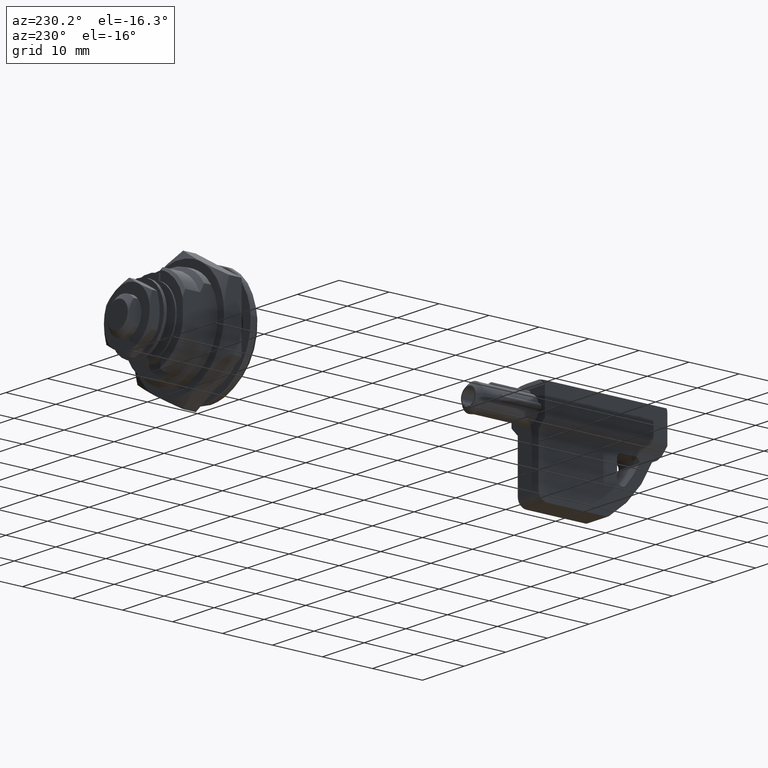
[diagram: clean part render]
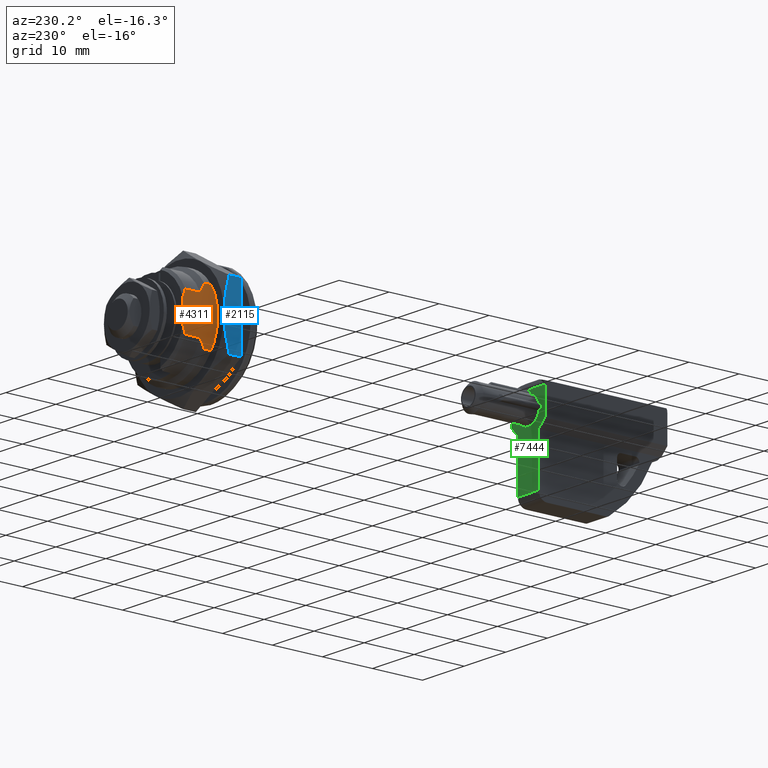
[diagram: same view with three faces highlighted in distinct colors, each labeled with its STEP entity id]
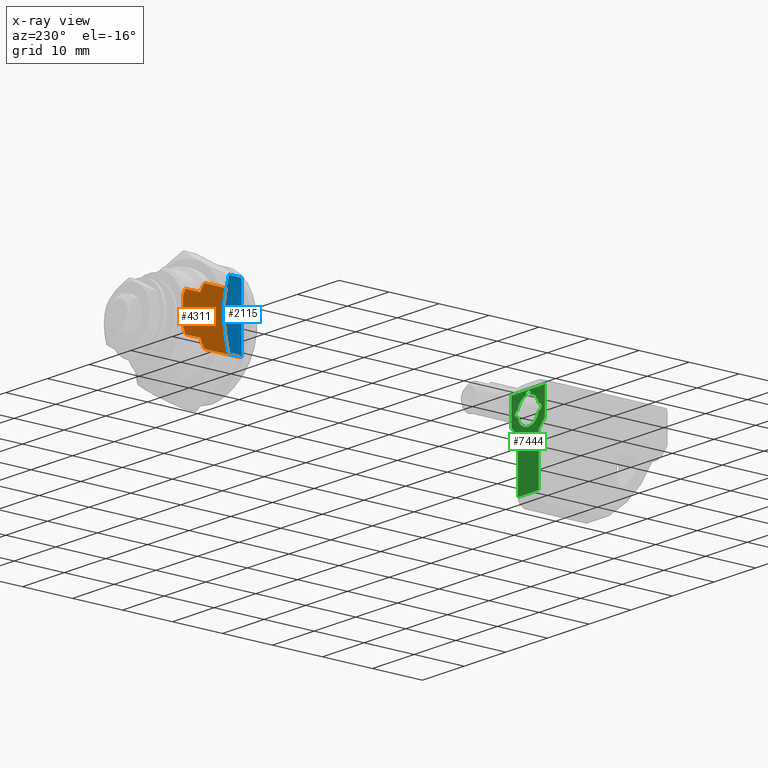
[diagram: x-ray of the same camera — body ghosted, the three highlighted faces saturated]
A machine part, auxiliary view with three faces highlighted in distinct colors.
The next image is the same camera in x-ray (body ghosted, the three faces saturated) — at least one of them is partly hidden behind the body in this view.
Their STEP definitions:

[orange] entity #4311 — the highlighted face is a freeform B-spline surface patch.
#3688=CARTESIAN_POINT('',(-7.900000000000000,6.900000000021841,5.276362383310140));
#3689=VERTEX_POINT('',#3688);
#3705=CARTESIAN_POINT('',(-7.900000000000000,4.837195E-016,5.276362383310140));
#3706=VERTEX_POINT('',#3705);
#3707=CARTESIAN_POINT('',(-7.900000000000000,6.900000000021841,5.276362383310140));
#3708=CARTESIAN_POINT('',(-7.900000000000000,4.837195E-016,5.276362383310140));
#3709=QUASI_UNIFORM_CURVE('',1,(#3707,#3708),.UNSPECIFIED.,.F.,.U.);
#3710=EDGE_CURVE('',#3689,#3706,#3709,.T.);
#3745=CARTESIAN_POINT('',(-7.900000000000000,10.699999999999999,3.644173431658020));
#3746=VERTEX_POINT('',#3745);
#3747=CARTESIAN_POINT('',(-7.900000000000000,11.199999999999999,2.197726097584000));
#3748=VERTEX_POINT('',#3747);
#3749=CARTESIAN_POINT('',(-7.900000000000000,10.699999999999999,3.644173431658020));
#3750=CARTESIAN_POINT('',(-7.900000000000000,10.897494407005480,3.172680684901958));
#3751=CARTESIAN_POINT('',(-7.900000000000000,11.067601785688590,2.691720940047350));
#3752=CARTESIAN_POINT('',(-7.900000000000000,11.199999999999999,2.197726097583900));
#3753=QUASI_UNIFORM_CURVE('',3,(#3749,#3750,#3751,#3752),.UNSPECIFIED.,.F.,.U.);
#3754=EDGE_CURVE('',#3746,#3748,#3753,.T.);
#3821=CARTESIAN_POINT('',(-7.900000000000000,10.699999999999999,-3.644173431657760));
#3822=VERTEX_POINT('',#3821);
#3836=CARTESIAN_POINT('',(-7.900000000000000,11.199999999999999,-2.197726097583745));
#3837=VERTEX_POINT('',#3836);
#3838=CARTESIAN_POINT('',(-7.900000000000000,11.199999999999999,-2.197726097583745));
#3839=CARTESIAN_POINT('',(-7.900000000000000,11.067601785688590,-2.691720940047094));
#3840=CARTESIAN_POINT('',(-7.900000000000000,10.897494407005480,-3.172680684901704));
#3841=CARTESIAN_POINT('',(-7.900000000000000,10.699999999999999,-3.644173431657765));
#3842=QUASI_UNIFORM_CURVE('',3,(#3838,#3839,#3840,#3841),.UNSPECIFIED.,.F.,.U.);
#3843=EDGE_CURVE('',#3837,#3822,#3842,.T.);
#3874=CARTESIAN_POINT('',(-7.900000000000000,11.199999999999999,-2.197726097583745));
#3875=CARTESIAN_POINT('',(-7.900000000000000,11.199999999999999,2.197726097584000));
#3876=QUASI_UNIFORM_CURVE('',1,(#3874,#3875),.UNSPECIFIED.,.F.,.U.);
#3877=EDGE_CURVE('',#3837,#3748,#3876,.T.);
#4024=CARTESIAN_POINT('',(-7.900000000000000,7.700000000000001,3.644173431658020));
#4025=VERTEX_POINT('',#4024);
#4026=CARTESIAN_POINT('',(-7.900000000000000,6.900000000021841,5.276362383310140));
#4027=CARTESIAN_POINT('',(-7.900000000018071,7.047288978963378,5.011171102187841));
#4028=CARTESIAN_POINT('',(-7.900000000000002,7.188570036425821,4.743035102408429));
#4029=CARTESIAN_POINT('',(-7.899999999999999,7.456298449008924,4.199492521960599));
#4030=CARTESIAN_POINT('',(-7.900000000000000,7.582751695075470,3.924088828693709));
#4031=CARTESIAN_POINT('',(-7.900000000000000,7.700000000000001,3.644173431698095));
#4032=B_SPLINE_CURVE_WITH_KNOTS('',3,(#4026,#4027,#4028,#4029,#4030,#4031),.UNSPECIFIED.,.F.,.U.,(4,2,4),(0.0,0.500000000000000,1.0),.UNSPECIFIED.);
#4033=EDGE_CURVE('',#3689,#4025,#4032,.T.);
#4099=CARTESIAN_POINT('',(-7.900000000000000,6.900000000000000,-5.276362383309141));
#4100=VERTEX_POINT('',#4099);
#4116=CARTESIAN_POINT('',(-7.900000000000000,7.700000000000001,-3.644173431657760));
#4117=VERTEX_POINT('',#4116);
#4118=CARTESIAN_POINT('',(-7.900000000000000,7.700000000000001,-3.644173431657760));
#4119=CARTESIAN_POINT('',(-7.900000000000000,7.582751695074945,-3.924088828654686));
#4120=CARTESIAN_POINT('',(-7.900000000000000,7.456298448992350,-4.199492521955431));
#4121=CARTESIAN_POINT('',(-7.900000000000000,7.188570036406624,-4.743035102405264));
#4122=CARTESIAN_POINT('',(-7.900000000000000,7.047288978964740,-5.011171102173634));
#4123=CARTESIAN_POINT('',(-7.900000000000000,6.900000000000000,-5.276362383309141));
#4124=B_SPLINE_CURVE_WITH_KNOTS('',3,(#4118,#4119,#4120,#4121,#4122,#4123),.UNSPECIFIED.,.F.,.U.,(4,2,4),(0.0,0.500000000000000,1.0),.UNSPECIFIED.);
#4125=EDGE_CURVE('',#4117,#4100,#4124,.T.);
#4167=CARTESIAN_POINT('',(-7.900000000000000,10.699999999999999,3.644173431658020));
#4168=CARTESIAN_POINT('',(-7.900000000000000,7.700000000000001,3.644173431658020));
#4169=QUASI_UNIFORM_CURVE('',1,(#4167,#4168),.UNSPECIFIED.,.F.,.U.);
#4170=EDGE_CURVE('',#3746,#4025,#4169,.T.);
#4214=CARTESIAN_POINT('',(-7.900000000000000,7.700000000000001,-3.644173431657760));
#4215=CARTESIAN_POINT('',(-7.900000000000000,10.699999999999999,-3.644173431657760));
#4216=QUASI_UNIFORM_CURVE('',1,(#4214,#4215),.UNSPECIFIED.,.F.,.U.);
#4217=EDGE_CURVE('',#4117,#3822,#4216,.T.);
#4257=CARTESIAN_POINT('',(-7.900000000000000,4.837195E-016,-5.276362383309141));
#4258=VERTEX_POINT('',#4257);
#4259=CARTESIAN_POINT('',(-7.900000000000000,4.837195E-016,-5.276362383309141));
#4260=CARTESIAN_POINT('',(-7.900000000000000,4.837195E-016,5.276362383310140));
#4261=QUASI_UNIFORM_CURVE('',1,(#4259,#4260),.UNSPECIFIED.,.F.,.U.);
#4262=EDGE_CURVE('',#4258,#3706,#4261,.T.);
#4290=CARTESIAN_POINT('',(-7.900000000000000,-0.559439978292226,5.803470964949544));
#4291=CARTESIAN_POINT('',(-7.900000000000000,-0.559439978292226,-5.803471247994681));
#4292=CARTESIAN_POINT('',(-7.900000000000000,11.759440278699641,5.803470964949544));
#4293=CARTESIAN_POINT('',(-7.900000000000000,11.759440278699641,-5.803471247994681));
#4294=B_SPLINE_SURFACE_WITH_KNOTS('',1,1,((#4290,#4292),(#4291,#4293)),.UNSPECIFIED.,.F.,.F.,.U.,(2,2),(2,2),(0.0,11.606942212944229),(0.0,12.318880256991861),.UNSPECIFIED.);
#4295=ORIENTED_EDGE('',*,*,#3877,.F.);
#4296=ORIENTED_EDGE('',*,*,#3843,.T.);
#4297=ORIENTED_EDGE('',*,*,#4217,.F.);
#4298=ORIENTED_EDGE('',*,*,#4125,.T.);
#4299=CARTESIAN_POINT('',(-7.900000000000000,6.900000000000000,-5.276362383309141));
#4300=CARTESIAN_POINT('',(-7.900000000000000,4.837195E-016,-5.276362383309141));
#4301=QUASI_UNIFORM_CURVE('',1,(#4299,#4300),.UNSPECIFIED.,.F.,.U.);
#4302=EDGE_CURVE('',#4100,#4258,#4301,.T.);
#4303=ORIENTED_EDGE('',*,*,#4302,.T.);
#4304=ORIENTED_EDGE('',*,*,#4262,.T.);
#4305=ORIENTED_EDGE('',*,*,#3710,.F.);
#4306=ORIENTED_EDGE('',*,*,#4033,.T.);
#4307=ORIENTED_EDGE('',*,*,#4170,.F.);
#4308=ORIENTED_EDGE('',*,*,#3754,.T.);
#4309=EDGE_LOOP('',(#4295,#4296,#4297,#4298,#4303,#4304,#4305,#4306,#4307,#4308));
#4310=FACE_OUTER_BOUND('',#4309,.T.);
#4311=ADVANCED_FACE('',(#4310),#4294,.F.);

[blue] entity #2115 — the highlighted face is a freeform B-spline surface patch.
#1656=CARTESIAN_POINT('',(-11.000000000000201,5.500000000000000,-1.421085E-014));
#1657=VERTEX_POINT('',#1656);
#1768=CARTESIAN_POINT('',(-11.0,4.517519582818508,6.350853116742620));
#1769=VERTEX_POINT('',#1768);
#1770=CARTESIAN_POINT('',(-11.0,4.517519582818437,6.350853116742604));
#1771=CARTESIAN_POINT('',(-11.0,4.813871360294527,5.324260464609766));
#1772=CARTESIAN_POINT('',(-11.0,5.060687656531030,4.284205776269046));
#1773=CARTESIAN_POINT('',(-11.0,5.275908638114316,2.958781858218811));
#1774=CARTESIAN_POINT('',(-11.0,5.333449356244685,2.559245373339782));
#1775=CARTESIAN_POINT('',(-11.0,5.379547030997117,2.156599063736592));
#1776=CARTESIAN_POINT('',(-11.0,5.407640668046575,1.887451233495185));
#1777=CARTESIAN_POINT('',(-11.0,5.420380349835128,1.752365499602068));
#1778=CARTESIAN_POINT('',(-11.0,5.477088102997506,1.077148416634842));
#1779=CARTESIAN_POINT('',(-11.0,5.499946011423390,0.538671275182361));
#1780=CARTESIAN_POINT('',(-11.0,5.499999967989155,0.001275296503354));
#1781=CARTESIAN_POINT('',(-11.0,5.499999999841741,0.000637647247153));
#1782=CARTESIAN_POINT('',(-11.0,5.499999999526189,4.155733E-010));
#1783=B_SPLINE_CURVE_WITH_KNOTS('',3,(#1770,#1771,#1772,#1773,#1774,#1775,#1776,#1777,#1778,#1779,#1780,#1781,#1782),.UNSPECIFIED.,.F.,.U.,(4,2,1,2,2,2,4),(0.499851504008209,0.749851504008208,0.812351504008208,0.843601504008208,0.874851504008208,0.999851504008208,1.0),.UNSPECIFIED.);
#1784=EDGE_CURVE('',#1769,#1657,#1783,.T.);
#1816=CARTESIAN_POINT('',(-10.999999999989940,4.517519627756101,-6.350852961091380));
#1817=VERTEX_POINT('',#1816);
#1818=CARTESIAN_POINT('',(-11.000000000000201,5.500000000000000,-1.421085E-014));
#1819=CARTESIAN_POINT('',(-11.0,5.499999734205588,-0.536116597932297));
#1820=CARTESIAN_POINT('',(-11.0,5.477259800926092,-1.070519231547561));
#1821=CARTESIAN_POINT('',(-11.0,5.388477854223432,-2.136698324092624));
#1822=CARTESIAN_POINT('',(-11.0,5.322416487689843,-2.668473324314180));
#1823=CARTESIAN_POINT('',(-11.0,5.194175945466263,-3.463938805912636));
#1824=CARTESIAN_POINT('',(-11.0,5.146584973193704,-3.728728848657463));
#1825=CARTESIAN_POINT('',(-11.0,5.042387228402909,-4.257629383323240));
#1826=CARTESIAN_POINT('',(-11.0,4.985755986517958,-4.521850372750786));
#1827=CARTESIAN_POINT('',(-11.0,4.803562689097966,-5.312884909771390));
#1828=CARTESIAN_POINT('',(-11.0,4.666652325817395,-5.834242140850442));
#1829=CARTESIAN_POINT('',(-11.0,4.517519627751625,-6.350852961089640));
#1830=B_SPLINE_CURVE_WITH_KNOTS('',3,(#1818,#1819,#1820,#1821,#1822,#1823,#1824,#1825,#1826,#1827,#1828,#1829),.UNSPECIFIED.,.F.,.U.,(4,2,2,2,2,4),(0.0,0.124851503977544,0.249851503977544,0.312351503977544,0.374851503977544,0.499851503977545),.UNSPECIFIED.);
#1831=EDGE_CURVE('',#1657,#1817,#1830,.T.);
#2044=CARTESIAN_POINT('',(-11.0,2.0,6.350852961075090));
#2045=VERTEX_POINT('',#2044);
#2053=CARTESIAN_POINT('',(-10.999999999989940,2.0,-6.350852961091380));
#2054=VERTEX_POINT('',#2053);
#2055=CARTESIAN_POINT('',(-10.999999999989940,2.0,-6.350852961091380));
#2056=CARTESIAN_POINT('',(-11.0,2.0,6.350852961075090));
#2057=QUASI_UNIFORM_CURVE('',1,(#2055,#2056),.UNSPECIFIED.,.F.,.U.);
#2058=EDGE_CURVE('',#2054,#2045,#2057,.T.);
#2095=CARTESIAN_POINT('',(-11.0,1.825175006783677,6.985303310712057));
#2096=CARTESIAN_POINT('',(-11.0,1.825175006783677,-6.985303495747123));
#2097=CARTESIAN_POINT('',(-11.0,5.674825087093637,6.985303310712057));
#2098=CARTESIAN_POINT('',(-11.0,5.674825087093637,-6.985303495747123));
#2099=B_SPLINE_SURFACE_WITH_KNOTS('',1,1,((#2095,#2097),(#2096,#2098)),.UNSPECIFIED.,.F.,.F.,.U.,(2,2),(2,2),(0.0,13.970606806459180),(0.0,3.849650080309960),.UNSPECIFIED.);
#2100=CARTESIAN_POINT('',(-11.0,4.517519582818508,6.350853116742620));
#2101=CARTESIAN_POINT('',(-11.0,2.0,6.350852961075090));
#2102=QUASI_UNIFORM_CURVE('',1,(#2100,#2101),.UNSPECIFIED.,.F.,.U.);
#2103=EDGE_CURVE('',#1769,#2045,#2102,.T.);
#2104=ORIENTED_EDGE('',*,*,#2103,.F.);
#2105=ORIENTED_EDGE('',*,*,#1784,.T.);
#2106=ORIENTED_EDGE('',*,*,#1831,.T.);
#2107=CARTESIAN_POINT('',(-10.999999999989940,4.517519627756101,-6.350852961091380));
#2108=CARTESIAN_POINT('',(-10.999999999989940,2.0,-6.350852961091380));
#2109=QUASI_UNIFORM_CURVE('',1,(#2107,#2108),.UNSPECIFIED.,.F.,.U.);
#2110=EDGE_CURVE('',#1817,#2054,#2109,.T.);
#2111=ORIENTED_EDGE('',*,*,#2110,.T.);
#2112=ORIENTED_EDGE('',*,*,#2058,.T.);
#2113=EDGE_LOOP('',(#2104,#2105,#2106,#2111,#2112));
#2114=FACE_OUTER_BOUND('',#2113,.T.);
#2115=ADVANCED_FACE('',(#2114),#2099,.F.);

[green] entity #7444 — the highlighted face is a freeform B-spline surface patch.
#5701=CARTESIAN_POINT('',(1.646350844827652,-64.500000000000000,-2.012344129550144));
#5702=VERTEX_POINT('',#5701);
#5708=CARTESIAN_POINT('',(-2.541161151914699,-64.500000000000000,-0.550000000000000));
#5709=VERTEX_POINT('',#5708);
#5710=CARTESIAN_POINT('',(1.646350844827693,-64.500000000000014,-2.012344129550194));
#5711=CARTESIAN_POINT('',(0.928055686289270,-64.500000000000000,-2.600000000000000));
#5712=CARTESIAN_POINT('',(-3.949355E-015,-64.500000000000000,-2.600000000000000));
#5713=CARTESIAN_POINT('',(-2.097466347612079,-64.500000000000000,-2.600000000000000));
#5714=CARTESIAN_POINT('',(-2.541161151914620,-64.500000000000000,-0.549999999999983));
#5722=(BOUNDED_CURVE()B_SPLINE_CURVE(2,(#5710,#5711,#5712,#5713,#5714),.UNSPECIFIED.,.F.,.U.)B_SPLINE_CURVE_WITH_KNOTS((3,2,3),(0.247566997875736,0.500000000000000,1.0),.UNSPECIFIED.)CURVE()GEOMETRIC_REPRESENTATION_ITEM()RATIONAL_B_SPLINE_CURVE((0.889166389513129,0.888077155438845,1.0,0.778311782494154,1.0))REPRESENTATION_ITEM(''));
#5723=EDGE_CURVE('',#5702,#5709,#5722,.T.);
#5747=CARTESIAN_POINT('',(-2.541161151914699,-64.500000000000000,0.550000000000000));
#5748=VERTEX_POINT('',#5747);
#5754=CARTESIAN_POINT('',(-1.646350395216080,-64.500000000000000,2.012344497389020));
#5755=VERTEX_POINT('',#5754);
#5756=CARTESIAN_POINT('',(-2.541161151914620,-64.500000000000000,0.549999999999982));
#5757=CARTESIAN_POINT('',(-2.349092553533071,-64.500000000000000,1.437413201290709));
#5758=CARTESIAN_POINT('',(-1.646350395216080,-64.500000000000028,2.012344497389021));
#5766=(BOUNDED_CURVE()B_SPLINE_CURVE(2,(#5756,#5757,#5758),.UNSPECIFIED.,.F.,.U.)B_SPLINE_CURVE_WITH_KNOTS((3,3),(0.0,0.584794345000766),.UNSPECIFIED.)CURVE()GEOMETRIC_REPRESENTATION_ITEM()RATIONAL_B_SPLINE_CURVE((1.0,0.906833491683561,0.922633477780962))REPRESENTATION_ITEM(''));
#5767=EDGE_CURVE('',#5748,#5755,#5766,.T.);
#5797=CARTESIAN_POINT('',(-0.550000000000004,-64.500000000000000,2.541161151914695));
#5798=VERTEX_POINT('',#5797);
#5799=CARTESIAN_POINT('',(-1.646350395216080,-64.500000000000028,2.012344497389021));
#5800=CARTESIAN_POINT('',(-1.161836955475255,-64.499999999999986,2.408737308878196));
#5801=CARTESIAN_POINT('',(-0.549999999999987,-64.500000000000000,2.541161151914616));
#5809=(BOUNDED_CURVE()B_SPLINE_CURVE(2,(#5799,#5800,#5801),.UNSPECIFIED.,.F.,.U.)B_SPLINE_CURVE_WITH_KNOTS((3,3),(0.584794345000766,1.0),.UNSPECIFIED.)CURVE()GEOMETRIC_REPRESENTATION_ITEM()RATIONAL_B_SPLINE_CURVE((0.922633477780962,0.933851513031529,1.0))REPRESENTATION_ITEM(''));
#5810=EDGE_CURVE('',#5755,#5798,#5809,.T.);
#5834=CARTESIAN_POINT('',(0.549999999999996,-64.500000000000000,2.541161151914695));
#5835=VERTEX_POINT('',#5834);
#5841=CARTESIAN_POINT('',(2.541161151914691,-64.500000000000000,0.550000000000000));
#5842=VERTEX_POINT('',#5841);
#5843=CARTESIAN_POINT('',(0.549999999999979,-64.500000000000000,2.541161151914616));
#5844=CARTESIAN_POINT('',(2.186880485287216,-64.500000000000000,2.186880485287220));
#5845=CARTESIAN_POINT('',(2.541161151914612,-64.500000000000000,0.549999999999983));
#5853=(BOUNDED_CURVE()B_SPLINE_CURVE(2,(#5843,#5844,#5845),.UNSPECIFIED.,.F.,.U.)CURVE()GEOMETRIC_REPRESENTATION_ITEM()QUASI_UNIFORM_CURVE()RATIONAL_B_SPLINE_CURVE((1.0,0.840685004715090,1.0))REPRESENTATION_ITEM(''));
#5854=EDGE_CURVE('',#5835,#5842,#5853,.T.);
#5878=CARTESIAN_POINT('',(2.541161151914691,-64.500000000000000,-0.550000000000000));
#5879=VERTEX_POINT('',#5878);
#5885=CARTESIAN_POINT('',(2.541161151914612,-64.500000000000000,-0.549999999999983));
#5886=CARTESIAN_POINT('',(2.349092622468419,-64.500000000000000,-1.437412882789168));
#5887=CARTESIAN_POINT('',(1.646350844827693,-64.500000000000014,-2.012344129550194));
#5895=(BOUNDED_CURVE()B_SPLINE_CURVE(2,(#5885,#5886,#5887),.UNSPECIFIED.,.F.,.U.)B_SPLINE_CURVE_WITH_KNOTS((3,3),(0.0,0.247566997875736),.UNSPECIFIED.)CURVE()GEOMETRIC_REPRESENTATION_ITEM()RATIONAL_B_SPLINE_CURVE((1.0,0.890234627055309,0.889166389513129))REPRESENTATION_ITEM(''));
#5896=EDGE_CURVE('',#5879,#5702,#5895,.T.);
#6487=CARTESIAN_POINT('',(3.999999999999996,-64.500000000000000,3.300000000000000));
#6488=VERTEX_POINT('',#6487);
#6504=CARTESIAN_POINT('',(-4.000000000000004,-64.500000000000000,3.300000000000000));
#6505=VERTEX_POINT('',#6504);
#6506=CARTESIAN_POINT('',(-4.000000000000004,-64.500000000000000,3.300000000000000));
#6507=CARTESIAN_POINT('',(3.999999999999996,-64.500000000000000,3.300000000000000));
#6508=QUASI_UNIFORM_CURVE('',1,(#6506,#6507),.UNSPECIFIED.,.F.,.U.);
#6509=EDGE_CURVE('',#6505,#6488,#6508,.T.);
#6593=CARTESIAN_POINT('',(2.499999999999996,-64.500000000000000,-3.500000000000000));
#6594=VERTEX_POINT('',#6593);
#6595=CARTESIAN_POINT('',(3.999999999999996,-64.500000000000000,-1.999999999999970));
#6596=VERTEX_POINT('',#6595);
#6597=CARTESIAN_POINT('',(2.499999999999996,-64.500000000000000,-3.500000000000000));
#6598=CARTESIAN_POINT('',(3.999999999999996,-64.500000000000000,-1.999999999999970));
#6599=QUASI_UNIFORM_CURVE('',1,(#6597,#6598),.UNSPECIFIED.,.F.,.U.);
#6600=EDGE_CURVE('',#6594,#6596,#6599,.T.);
#6622=CARTESIAN_POINT('',(-2.500000000000004,-64.500000000000000,-3.500000000000000));
#6623=VERTEX_POINT('',#6622);
#6624=CARTESIAN_POINT('',(-4.000000000000004,-64.500000000000000,-1.999999999999970));
#6625=VERTEX_POINT('',#6624);
#6626=CARTESIAN_POINT('',(-2.500000000000004,-64.500000000000000,-3.500000000000000));
#6627=CARTESIAN_POINT('',(-4.000000000000004,-64.500000000000000,-1.999999999999970));
#6628=QUASI_UNIFORM_CURVE('',1,(#6626,#6627),.UNSPECIFIED.,.F.,.U.);
#6629=EDGE_CURVE('',#6623,#6625,#6628,.T.);
#6907=CARTESIAN_POINT('',(2.600000000000076,-64.500000000000000,-0.550000000000000));
#6908=VERTEX_POINT('',#6907);
#6915=CARTESIAN_POINT('',(2.600000000000076,-64.500000000000000,0.550000000000000));
#6916=VERTEX_POINT('',#6915);
#6922=CARTESIAN_POINT('',(2.600000000000076,-64.500000000000000,0.550000000000000));
#6923=CARTESIAN_POINT('',(2.699043458005758,-64.500000000000099,0.550278144214085));
#6924=CARTESIAN_POINT('',(2.869724594393176,-64.499999999999901,0.502539204968122));
#6925=CARTESIAN_POINT('',(3.060079530221625,-64.500000000000071,0.330017106875479));
#6926=CARTESIAN_POINT('',(3.164924017854091,-64.500000000000213,0.093999252253955));
#6927=CARTESIAN_POINT('',(3.144315674721964,-64.499999999999417,-0.185221545019725));
#6928=CARTESIAN_POINT('',(3.005094578362868,-64.500000000000668,-0.393346918917029));
#6929=CARTESIAN_POINT('',(2.815844306010185,-64.499999999999019,-0.519604570679338));
#6930=CARTESIAN_POINT('',(2.680996682507910,-64.500000000000611,-0.550130913076087));
#6931=CARTESIAN_POINT('',(2.600000000000076,-64.500000000000000,-0.550000000000000));
#6932=B_SPLINE_CURVE_WITH_KNOTS('',3,(#6922,#6923,#6924,#6925,#6926,#6927,#6928,#6929,#6930,#6931),.UNSPECIFIED.,.F.,.U.,(4,1,1,1,1,1,1,4),(0.000002415412234,0.296978794675046,0.513047049012781,0.756045069337535,1.053016832078155,1.323046289808557,1.485105935130223,1.728049279698849),.UNSPECIFIED.);
#6933=EDGE_CURVE('',#6916,#6908,#6932,.T.);
#6945=CARTESIAN_POINT('',(2.541161151914691,-64.500000000000000,-0.550000000000000));
#6946=CARTESIAN_POINT('',(2.600000000000076,-64.500000000000000,-0.550000000000000));
#6947=QUASI_UNIFORM_CURVE('',1,(#6945,#6946),.UNSPECIFIED.,.F.,.U.);
#6948=EDGE_CURVE('',#5879,#6908,#6947,.T.);
#6961=CARTESIAN_POINT('',(2.600000000000076,-64.500000000000000,0.550000000000000));
#6962=CARTESIAN_POINT('',(2.541161151914691,-64.500000000000000,0.550000000000000));
#6963=QUASI_UNIFORM_CURVE('',1,(#6961,#6962),.UNSPECIFIED.,.F.,.U.);
#6964=EDGE_CURVE('',#6916,#5842,#6963,.T.);
#6988=CARTESIAN_POINT('',(-2.600000000000084,-64.500000000000000,0.550000000000000));
#6989=VERTEX_POINT('',#6988);
#6996=CARTESIAN_POINT('',(-2.600000000000084,-64.500000000000000,-0.550000000000000));
#6997=VERTEX_POINT('',#6996);
#7003=CARTESIAN_POINT('',(-2.600000000000084,-64.500000000000000,-0.550000000000000));
#7004=CARTESIAN_POINT('',(-2.681005865344769,-64.500000000000014,-0.550095818210914));
#7005=CARTESIAN_POINT('',(-2.842918828038462,-64.500000000000000,-0.513602949082180));
#7006=CARTESIAN_POINT('',(-3.031963885362632,-64.499999999999901,-0.366122318555205));
#7007=CARTESIAN_POINT('',(-3.144391753850169,-64.500000000000085,-0.155712007553697));
#7008=CARTESIAN_POINT('',(-3.159964575720477,-64.499999999999844,0.055734958471736));
#7009=CARTESIAN_POINT('',(-3.099204369818253,-64.500000000000313,0.255979009516683));
#7010=CARTESIAN_POINT('',(-2.979009429356642,-64.499999999999488,0.418144863365411));
#7011=CARTESIAN_POINT('',(-2.797966511406555,-64.500000000000554,0.526597745720660));
#7012=CARTESIAN_POINT('',(-2.662991192965301,-64.499999999999744,0.550030817253861));
#7013=CARTESIAN_POINT('',(-2.600000000000084,-64.500000000000000,0.550000000000000));
#7014=B_SPLINE_CURVE_WITH_KNOTS('',3,(#7003,#7004,#7005,#7006,#7007,#7008,#7009,#7010,#7011,#7012,#7013),.UNSPECIFIED.,.F.,.U.,(4,1,1,1,1,1,1,1,4),(0.000002415412150,0.243005613443003,0.486025141151097,0.702107822982103,0.944953570453991,1.106969327610988,1.323046289808541,1.539058429873225,1.728049279698848),.UNSPECIFIED.);
#7015=EDGE_CURVE('',#6997,#6989,#7014,.T.);
#7027=CARTESIAN_POINT('',(-2.541161151914699,-64.500000000000000,0.550000000000000));
#7028=CARTESIAN_POINT('',(-2.600000000000084,-64.500000000000000,0.550000000000000));
#7029=QUASI_UNIFORM_CURVE('',1,(#7027,#7028),.UNSPECIFIED.,.F.,.U.);
#7030=EDGE_CURVE('',#5748,#6989,#7029,.T.);
#7043=CARTESIAN_POINT('',(-2.600000000000084,-64.500000000000000,-0.550000000000000));
#7044=CARTESIAN_POINT('',(-2.541161151914699,-64.500000000000000,-0.550000000000000));
#7045=QUASI_UNIFORM_CURVE('',1,(#7043,#7044),.UNSPECIFIED.,.F.,.U.);
#7046=EDGE_CURVE('',#6997,#5709,#7045,.T.);
#7059=CARTESIAN_POINT('',(-0.550000000000004,-64.500000000000000,2.600000000000080));
#7060=VERTEX_POINT('',#7059);
#7061=CARTESIAN_POINT('',(-0.550000000000004,-64.500000000000000,2.600000000000080));
#7062=CARTESIAN_POINT('',(-0.550000000000004,-64.500000000000000,2.541161151914695));
#7063=QUASI_UNIFORM_CURVE('',1,(#7061,#7062),.UNSPECIFIED.,.F.,.U.);
#7064=EDGE_CURVE('',#7060,#5798,#7063,.T.);
#7092=CARTESIAN_POINT('',(0.549999999999996,-64.500000000000000,2.600000000000080));
#7093=VERTEX_POINT('',#7092);
#7101=CARTESIAN_POINT('',(-0.550000000000004,-64.500000000000000,2.600000000000080));
#7102=CARTESIAN_POINT('',(-0.550095818210918,-64.500000000000014,2.681005865344765));
#7103=CARTESIAN_POINT('',(-0.513602949082184,-64.500000000000000,2.842918828038458));
#7104=CARTESIAN_POINT('',(-0.366122318555209,-64.499999999999901,3.031963885362628));
#7105=CARTESIAN_POINT('',(-0.155712007553701,-64.500000000000085,3.144391753850165));
#7106=CARTESIAN_POINT('',(0.055734958471732,-64.499999999999844,3.159964575720473));
#7107=CARTESIAN_POINT('',(0.255979009516679,-64.500000000000313,3.099204369818249));
#7108=CARTESIAN_POINT('',(0.418144863365407,-64.499999999999488,2.979009429356638));
#7109=CARTESIAN_POINT('',(0.526597745720656,-64.500000000000554,2.797966511406551));
#7110=CARTESIAN_POINT('',(0.550030817253857,-64.499999999999744,2.662991192965297));
#7111=CARTESIAN_POINT('',(0.549999999999996,-64.500000000000000,2.600000000000080));
#7112=B_SPLINE_CURVE_WITH_KNOTS('',3,(#7101,#7102,#7103,#7104,#7105,#7106,#7107,#7108,#7109,#7110,#7111),.UNSPECIFIED.,.F.,.U.,(4,1,1,1,1,1,1,1,4),(0.000002415412150,0.243005613443003,0.486025141151097,0.702107822982103,0.944953570453991,1.106969327610988,1.323046289808541,1.539058429873225,1.728049279698848),.UNSPECIFIED.);
#7113=EDGE_CURVE('',#7060,#7093,#7112,.T.);
#7125=CARTESIAN_POINT('',(0.549999999999996,-64.500000000000000,2.541161151914695));
#7126=CARTESIAN_POINT('',(0.549999999999996,-64.500000000000000,2.600000000000080));
#7127=QUASI_UNIFORM_CURVE('',1,(#7125,#7126),.UNSPECIFIED.,.F.,.U.);
#7128=EDGE_CURVE('',#5835,#7093,#7127,.T.);
#7139=CARTESIAN_POINT('',(3.999999999999996,-64.500000000000000,3.300000000000000));
#7140=CARTESIAN_POINT('',(3.999999999999996,-64.500000000000000,-1.999999999999970));
#7141=QUASI_UNIFORM_CURVE('',1,(#7139,#7140),.UNSPECIFIED.,.F.,.U.);
#7142=EDGE_CURVE('',#6488,#6596,#7141,.T.);
#7195=CARTESIAN_POINT('',(2.499999999999941,-64.500000000000000,-13.300000000000001));
#7196=VERTEX_POINT('',#7195);
#7210=CARTESIAN_POINT('',(2.499999999999996,-64.500000000000000,-3.500000000000000));
#7211=CARTESIAN_POINT('',(2.499999999999941,-64.500000000000000,-13.300000000000001));
#7212=QUASI_UNIFORM_CURVE('',1,(#7210,#7211),.UNSPECIFIED.,.F.,.U.);
#7213=EDGE_CURVE('',#6594,#7196,#7212,.T.);
#7236=CARTESIAN_POINT('',(-2.499999999999949,-64.500000000000000,-13.300000000000001));
#7237=VERTEX_POINT('',#7236);
#7238=CARTESIAN_POINT('',(-2.500000000000004,-64.500000000000000,-3.500000000000000));
#7239=CARTESIAN_POINT('',(-2.499999999999949,-64.500000000000000,-13.300000000000001));
#7240=QUASI_UNIFORM_CURVE('',1,(#7238,#7239),.UNSPECIFIED.,.F.,.U.);
#7241=EDGE_CURVE('',#6623,#7237,#7240,.T.);
#7387=CARTESIAN_POINT('',(-2.499999999999949,-64.500000000000000,-13.300000000000001));
#7388=CARTESIAN_POINT('',(2.499999999999941,-64.500000000000000,-13.300000000000001));
#7389=QUASI_UNIFORM_CURVE('',1,(#7387,#7388),.UNSPECIFIED.,.F.,.U.);
#7390=EDGE_CURVE('',#7237,#7196,#7389,.T.);
#7402=CARTESIAN_POINT('',(-4.000000000000004,-64.500000000000000,3.300000000000000));
#7403=CARTESIAN_POINT('',(-4.000000000000004,-64.500000000000000,-1.999999999999970));
#7404=QUASI_UNIFORM_CURVE('',1,(#7402,#7403),.UNSPECIFIED.,.F.,.U.);
#7405=EDGE_CURVE('',#6505,#6625,#7404,.T.);
#7413=CARTESIAN_POINT('',(4.399599984494444,-64.500000000000000,-14.129169967825980));
#7414=CARTESIAN_POINT('',(4.399599984494444,-64.500000000000000,4.129170413072675));
#7415=CARTESIAN_POINT('',(-4.399600199071173,-64.500000000000000,-14.129169967825980));
#7416=CARTESIAN_POINT('',(-4.399600199071173,-64.500000000000000,4.129170413072675));
#7417=B_SPLINE_SURFACE_WITH_KNOTS('',1,1,((#7413,#7415),(#7414,#7416)),.UNSPECIFIED.,.F.,.F.,.U.,(2,2),(2,2),(0.0,18.258340380898659),(0.0,8.799200183565617),.UNSPECIFIED.);
#7418=ORIENTED_EDGE('',*,*,#7405,.F.);
#7419=ORIENTED_EDGE('',*,*,#6509,.T.);
#7420=ORIENTED_EDGE('',*,*,#7142,.T.);
#7421=ORIENTED_EDGE('',*,*,#6600,.F.);
#7422=ORIENTED_EDGE('',*,*,#7213,.T.);
#7423=ORIENTED_EDGE('',*,*,#7390,.F.);
#7424=ORIENTED_EDGE('',*,*,#7241,.F.);
#7425=ORIENTED_EDGE('',*,*,#6629,.T.);
#7426=EDGE_LOOP('',(#7418,#7419,#7420,#7421,#7422,#7423,#7424,#7425));
#7427=FACE_OUTER_BOUND('',#7426,.T.);
#7428=ORIENTED_EDGE('',*,*,#6933,.F.);
#7429=ORIENTED_EDGE('',*,*,#6964,.T.);
#7430=ORIENTED_EDGE('',*,*,#5854,.F.);
#7431=ORIENTED_EDGE('',*,*,#7128,.T.);
#7432=ORIENTED_EDGE('',*,*,#7113,.F.);
#7433=ORIENTED_EDGE('',*,*,#7064,.T.);
#7434=ORIENTED_EDGE('',*,*,#5810,.F.);
#7435=ORIENTED_EDGE('',*,*,#5767,.F.);
#7436=ORIENTED_EDGE('',*,*,#7030,.T.);
#7437=ORIENTED_EDGE('',*,*,#7015,.F.);
#7438=ORIENTED_EDGE('',*,*,#7046,.T.);
#7439=ORIENTED_EDGE('',*,*,#5723,.F.);
#7440=ORIENTED_EDGE('',*,*,#5896,.F.);
#7441=ORIENTED_EDGE('',*,*,#6948,.T.);
#7442=EDGE_LOOP('',(#7428,#7429,#7430,#7431,#7432,#7433,#7434,#7435,#7436,#7437,#7438,#7439,#7440,#7441));
#7443=FACE_BOUND('',#7442,.T.);
#7444=ADVANCED_FACE('',(#7427,#7443),#7417,.F.);